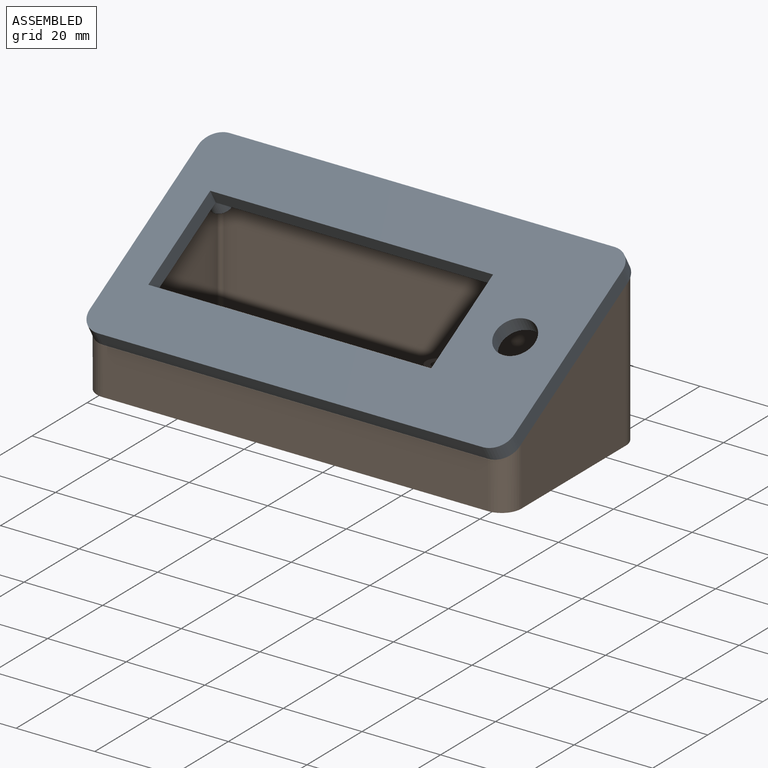
[diagram: assembled view]
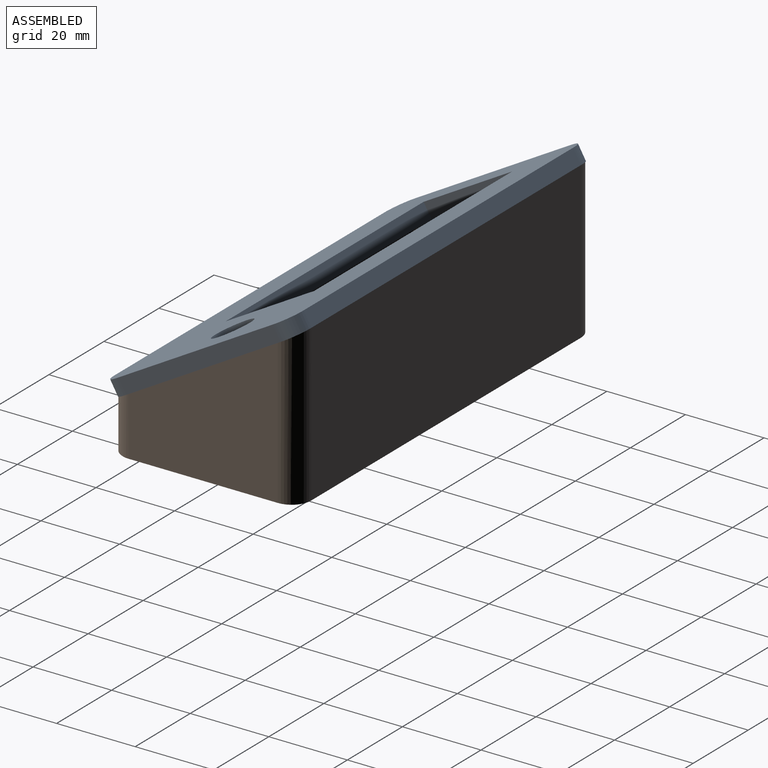
[diagram: assembled view, second angle]
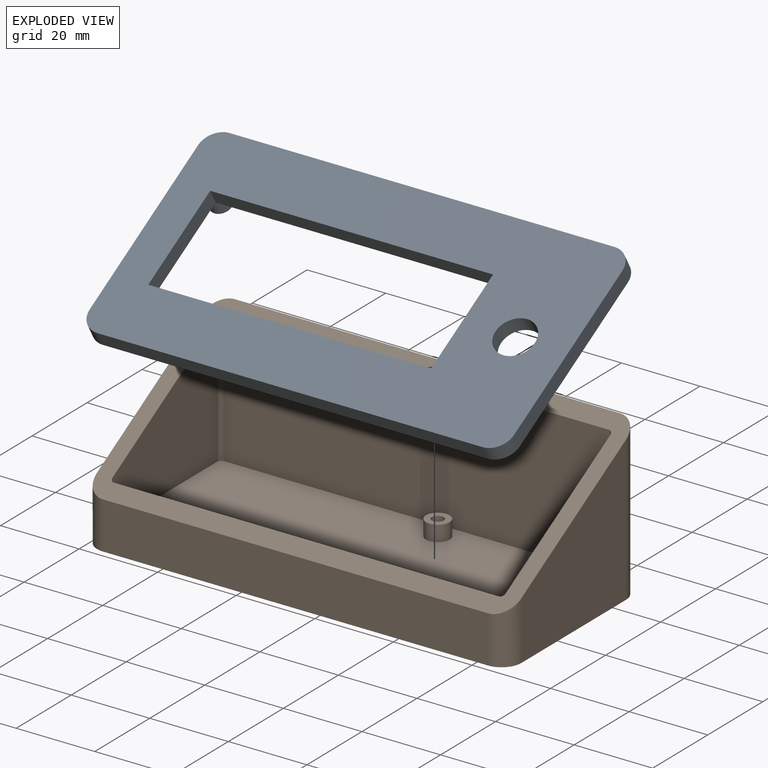
[diagram: exploded view]
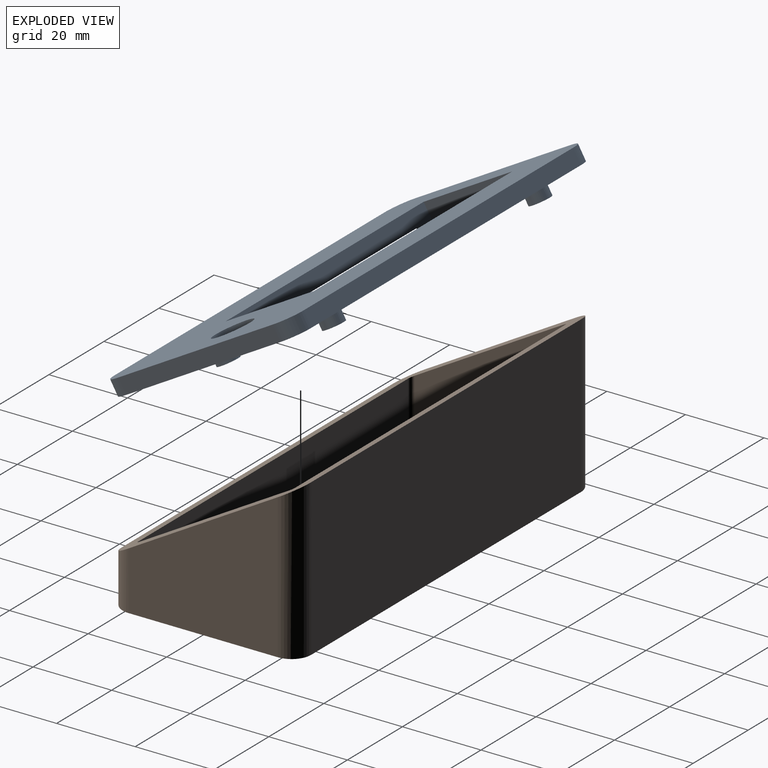
[diagram: exploded view, second angle]
ASSEMBLY  parts=2 mates=2
PART A: 31 faces, bbox 108x55.4x8 mm
  f0: plane 108x55.43mm, normal (0,0,1), area 4014mm2, adj f2,f3,f4,f5,f6,f7,f8,f9
  f1: plane 108x55.43mm, normal (0,0,-1), area 3919mm2, adj f2,f3,f4,f5,f6,f7,f8,f9
  f2: plane 98x4mm, normal (0,1,0), area 392mm2, adj f0,f1,f6,f9
  f3: plane 45.43x4mm, normal (-1,0,0), area 181.7mm2, adj f0,f1,f6,f7
  f4: plane 98x4mm, normal (0,-1,0), area 392mm2, adj f0,f1,f7,f8
  f5: plane 45.43x4mm, normal (1,0,0), area 181.7mm2, adj f0,f1,f8,f9
  f6: cylinder r=5mm len=5mm, axis (0,0,1), area 31.4mm2, adj f0,f1,f2,f3
  f7: cylinder r=5mm len=5mm, axis (0,0,-1), area 31.4mm2, adj f0,f1,f3,f4
  f8: cylinder r=5mm len=5mm, axis (0,0,1), area 31.4mm2, adj f0,f1,f4,f5
  f9: cylinder r=5mm len=5mm, axis (0,0,-1), area 31.4mm2, adj f0,f1,f2,f5
  f10: cylinder r=5mm len=10mm, axis (0,0,1), area 125.7mm2, adj f0,f1
  f11: plane 72x4mm, normal (0,-1,0), area 288mm2, adj f0,f1,f12,f14
  f12: plane 26x4mm, normal (1,0,0), area 104mm2, adj f0,f1,f11,f13
  f13: plane 72x4mm, normal (0,1,0), area 288mm2, adj f0,f1,f12,f14
  f14: plane 26x4mm, normal (-1,0,0), area 104mm2, adj f0,f1,f11,f13
  f15: cylinder r=2.75mm len=5.5mm, axis (0,0,1), area 69.1mm2, adj f1,f16
  f16: plane 5.5x5.5mm, normal (0,0,-1), area 16.7mm2, adj f15,f24
  f17: cylinder r=2.75mm len=5.5mm, axis (0,0,1), area 69.1mm2, adj f1,f18
  f18: plane 5.5x5.5mm, normal (0,0,-1), area 16.7mm2, adj f17,f26
  f19: cylinder r=2.75mm len=5.5mm, axis (0,0,1), area 69.1mm2, adj f1,f20
  f20: plane 5.5x5.5mm, normal (0,0,-1), area 16.7mm2, adj f19,f30
  f21: cylinder r=2.75mm len=5.5mm, axis (0,0,1), area 69.1mm2, adj f1,f22
  f22: plane 5.5x5.5mm, normal (0,0,-1), area 16.7mm2, adj f21,f28
  f23: cone r=0mm half-angle=59deg, axis (0,0,-1), area 8.2mm2, adj f24
  f24: cylinder r=1.5mm len=6mm, axis (0,0,-1), area 56.5mm2, adj f16,f23
  f25: cone r=0mm half-angle=59deg, axis (0,0,-1), area 8.2mm2, adj f26
  f26: cylinder r=1.5mm len=6mm, axis (0,0,-1), area 56.5mm2, adj f18,f25
  f27: cone r=0mm half-angle=59deg, axis (0,0,-1), area 8.2mm2, adj f28
  f28: cylinder r=1.5mm len=6mm, axis (0,0,-1), area 56.5mm2, adj f22,f27
  f29: cone r=0mm half-angle=59deg, axis (0,0,-1), area 8.2mm2, adj f30
  f30: cylinder r=1.5mm len=6mm, axis (0,0,-1), area 56.5mm2, adj f20,f29
PART B: 35 faces, bbox 48x39.7x108 mm
  f0: plane 98x39.71mm, normal (1,0,0), area 3891.9mm2, adj f1,f3,f6,f8
  f1: plane 108x48mm, normal (-0.5,0.87,0), area 1343.4mm2, adj f0,f2,f4,f5,f6,f7,f8,f9
  f2: plane 98x12mm, normal (-1,0,0), area 1176mm2, adj f1,f3,f7,f9
  f3: plane 108x48mm, normal (0,-1,0), area 5162.5mm2, adj f0,f2,f4,f5,f6,f7,f8,f9
  f4: plane 38x36.83mm, normal (0,0,1), area 982.5mm2, adj f1,f3,f8,f9
  f5: plane 38x36.83mm, normal (0,0,-1), area 982.5mm2, adj f1,f3,f6,f7
  f6: cylinder r=5mm len=39.71mm, axis (0,1,0), area 303.7mm2, adj f0,f1,f3,f5
  f7: cylinder r=5mm len=14.89mm, axis (0,-1,0), area 102.5mm2, adj f1,f2,f3,f5
  f8: cylinder r=5mm len=39.71mm, axis (0,-1,0), area 303.7mm2, adj f0,f1,f3,f4
  f9: cylinder r=5mm len=14.89mm, axis (0,1,0), area 102.5mm2, adj f1,f2,f3,f4
  f10: plane 98x33.4mm, normal (-1,0,0), area 3273.5mm2, adj f1,f12,f15,f17
  f11: plane 98x10.31mm, normal (1,0,0), area 1010.3mm2, adj f1,f12,f16,f18
  f12: plane 100x40mm, normal (0,1,0), area 3886mm2, adj f10,f11,f13,f14,f15,f16,f17,f18
  f13: plane 38x32.83mm, normal (0,0,-1), area 830.5mm2, adj f1,f12,f17,f18
  f14: plane 38x32.83mm, normal (0,0,1), area 830.5mm2, adj f1,f12,f15,f16
  f15: cylinder r=1mm len=33.4mm, axis (0,1,0), area 52.1mm2, adj f1,f10,f12,f14
  f16: cylinder r=1mm len=10.89mm, axis (0,-1,0), area 16.5mm2, adj f1,f11,f12,f14
  f17: cylinder r=1mm len=33.4mm, axis (0,-1,0), area 52.1mm2, adj f1,f10,f12,f13
  f18: cylinder r=1mm len=10.89mm, axis (0,1,0), area 16.5mm2, adj f1,f11,f12,f13
  f19: cylinder r=3mm len=6mm, axis (0,-1,0), area 75.4mm2, adj f12,f20
  f20: plane 6x6mm, normal (0,1,0), area 21.2mm2, adj f19,f34
  f21: cylinder r=3mm len=6mm, axis (0,-1,0), area 75.4mm2, adj f12,f22
  f22: plane 6x6mm, normal (0,1,0), area 21.2mm2, adj f21,f28
  f23: cylinder r=3mm len=6mm, axis (0,-1,0), area 75.4mm2, adj f12,f24
  f24: plane 6x6mm, normal (0,1,0), area 21.2mm2, adj f23,f32
  f25: cylinder r=3mm len=6mm, axis (0,-1,0), area 75.4mm2, adj f12,f26
  f26: plane 6x6mm, normal (0,1,0), area 21.2mm2, adj f25,f30
  f27: cone r=0mm half-angle=59deg, axis (0,1,0), area 8.2mm2, adj f28
  f28: cylinder r=1.5mm len=6mm, axis (0,1,0), area 56.5mm2, adj f22,f27
  f29: cone r=0mm half-angle=59deg, axis (0,1,0), area 8.2mm2, adj f30
  f30: cylinder r=1.5mm len=6mm, axis (0,1,0), area 56.5mm2, adj f26,f29
  f31: cone r=0mm half-angle=59deg, axis (0,1,0), area 8.2mm2, adj f32
  f32: cylinder r=1.5mm len=6mm, axis (0,1,0), area 56.5mm2, adj f24,f31
  f33: cone r=0mm half-angle=59deg, axis (0,1,0), area 8.2mm2, adj f34
  f34: cylinder r=1.5mm len=6mm, axis (0,1,0), area 56.5mm2, adj f20,f33
PLACE A rot(axis=(1,0,0),30deg) t=(-63.84,-17.54,109.11)mm
PLACE B rot(axis=(0.58,0.58,0.58),120deg) t=(-117.84,-17.57,89.23)mm
MATE planar A.f1 <-> B.f1  axis (0,0.5,-0.87) through (-60.13,-17.54,109.11)mm
MATE planar A.f3 <-> B.f5  axis (-1,0,0) through (-117.84,-18.54,110.84)mm
